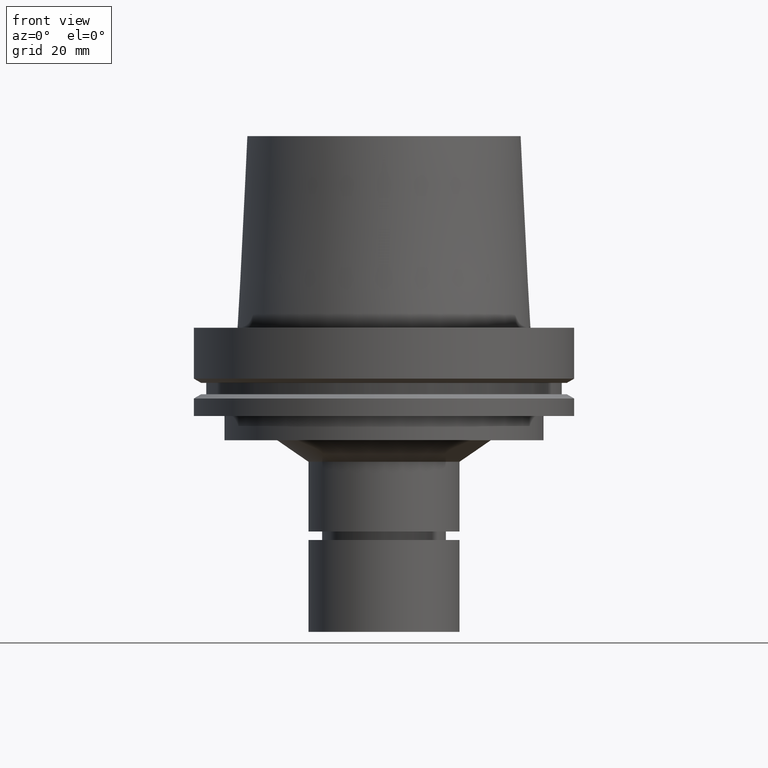
[diagram: clean part render]
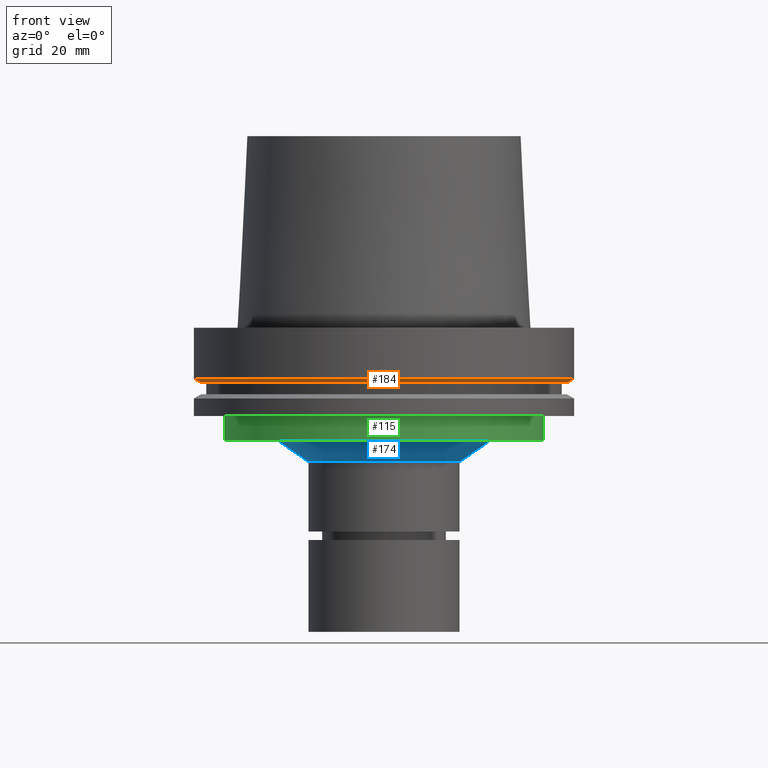
[diagram: same view with three faces highlighted in distinct colors, each labeled with its STEP entity id]
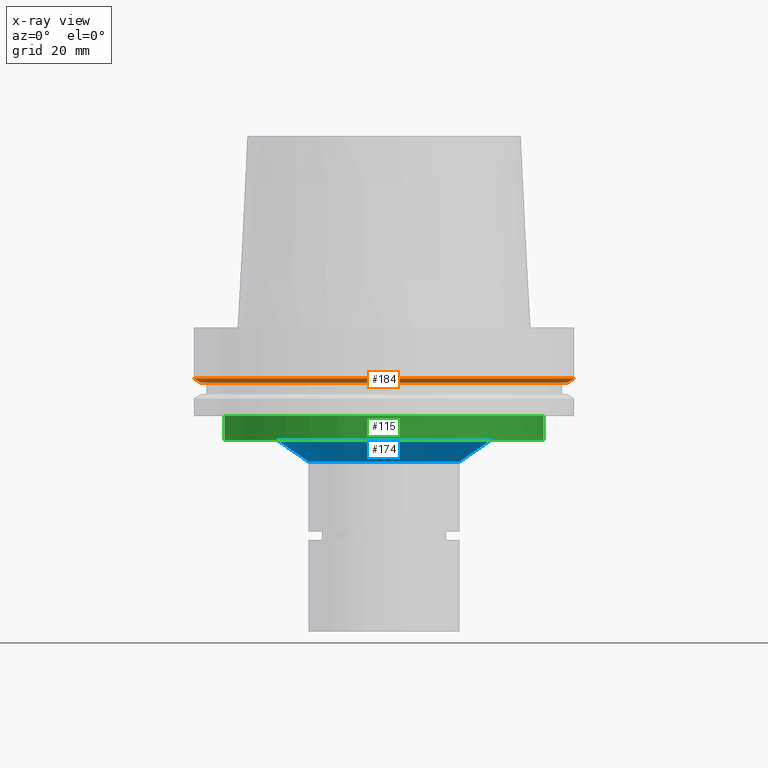
[diagram: x-ray of the same camera — body ghosted, the three highlighted faces saturated]
A machine part, front view with three faces highlighted in distinct colors.
The next image is the same camera in x-ray (body ghosted, the three faces saturated) — at least one of them is partly hidden behind the body in this view.
Their STEP definitions:

[orange] entity #184 — the highlighted conical surface has half-angle 60 deg.
#184=ADVANCED_FACE('Unnamed[1]',(#380,#381),#382,.T.);
#186=EDGE_CURVE('Unnamed[1]',#384,#384,#385,.T.);
#199=EDGE_CURVE('Unnamed[1]',#404,#404,#405,.T.);
#380=FACE_BOUND('',#617,.T.);
#381=FACE_BOUND('',#618,.T.);
#382=CONICAL_SURFACE('',#619,61.3112976320956,1.04719755119668);
#384=VERTEX_POINT('',#622);
#385=CIRCLE('',#623,62.5000000000001);
#404=VERTEX_POINT('',#648);
#405=CIRCLE('',#649,60.1225952641912);
#617=EDGE_LOOP('',(#831));
#618=EDGE_LOOP('',(#832));
#619=AXIS2_PLACEMENT_3D('',#833,#834,#835);
#622=CARTESIAN_POINT('',(1.02578894188643E-015,62.5,-16.7524047358084));
#623=AXIS2_PLACEMENT_3D('',#836,#837,#838);
#648=CARTESIAN_POINT('',(1.10983616172729E-015,60.1225952641912,-18.1250000000001));
#649=AXIS2_PLACEMENT_3D('',#857,#858,#859);
#831=ORIENTED_EDGE('',*,*,#199,.F.);
#832=ORIENTED_EDGE('',*,*,#186,.T.);
#833=CARTESIAN_POINT('',(1.06781255180686E-015,-3.21955389205117E-014,-17.4387023679042));
#834=DIRECTION('',(-6.12323399573677E-017,1.01046214935357E-015,1.0));
#835=DIRECTION('',(5.70458091125082E-032,1.0,-1.01046214935357E-015));
#836=CARTESIAN_POINT('',(1.02578894188643E-015,-3.15020611400879E-014,-16.7524047358083));
#837=DIRECTION('',(6.12323399573677E-017,-1.01046214935351E-015,-1.0));
#838=DIRECTION('',(5.70458091124975E-032,1.0,-1.01046214935351E-015));
#857=CARTESIAN_POINT('',(1.10983616172729E-015,-3.28890167009355E-014,-18.125));
#858=DIRECTION('',(6.12323399573677E-017,-1.01046214935353E-015,-1.0));
#859=DIRECTION('',(5.70458091124956E-032,1.0,-1.01046214935353E-015));

[blue] entity #174 — the highlighted conical surface has half-angle 55.144 deg.
#160=EDGE_CURVE('Unnamed[1]',#342,#342,#343,.T.);
#174=ADVANCED_FACE('Unnamed[1]',(#364,#365),#366,.T.);
#176=EDGE_CURVE('Unnamed[1]',#368,#368,#369,.T.);
#342=VERTEX_POINT('',#570);
#343=CIRCLE('',#571,35.1435726714544);
#364=FACE_BOUND('',#597,.T.);
#365=FACE_BOUND('',#598,.T.);
#366=CONICAL_SURFACE('',#599,30.071786335727,0.962446965226447);
#368=VERTEX_POINT('',#602);
#369=CIRCLE('',#603,24.9999999999996);
#570=CARTESIAN_POINT('',(2.26559657842261E-015,35.1435726714544,-37.0000000000001));
#571=AXIS2_PLACEMENT_3D('',#788,#789,#790);
#597=EDGE_LOOP('',(#813));
#598=EDGE_LOOP('',(#814));
#599=AXIS2_PLACEMENT_3D('',#815,#816,#817);
#602=CARTESIAN_POINT('',(2.6981810574591E-015,24.9999999999995,-44.0646406676224));
#603=AXIS2_PLACEMENT_3D('',#818,#819,#820);
#788=CARTESIAN_POINT('',(2.26559657842261E-015,-5.1961489769984E-014,-37.0000000000001));
#789=DIRECTION('',(6.12323399573677E-017,-1.01046214935359E-015,-1.0));
#790=DIRECTION('',(5.70458091125022E-032,1.0,-1.01046214935359E-015));
#813=ORIENTED_EDGE('',*,*,#176,.F.);
#814=ORIENTED_EDGE('',*,*,#160,.T.);
#815=CARTESIAN_POINT('',(2.48188881794086E-015,-5.55307657666921E-014,-40.5323203338112));
#816=DIRECTION('',(-6.12323399573677E-017,1.01046214935361E-015,1.0));
#817=DIRECTION('',(5.70458091124995E-032,1.0,-1.01046214935361E-015));
#818=CARTESIAN_POINT('',(2.6981810574591E-015,-5.91000417634002E-014,-44.0646406676224));
#819=DIRECTION('',(6.12323399573677E-017,-1.0104621493535E-015,-1.0));
#820=DIRECTION('',(5.70458091124956E-032,1.0,-1.0104621493535E-015));

[green] entity #115 — the highlighted cylindrical surface (bore or boss wall) has radius 52.5 mm, axis along (0, -0, -1).
#115=ADVANCED_FACE('Unnamed[1]',(#271,#272),#273,.T.);
#123=EDGE_CURVE('Unnamed[1]',#285,#285,#286,.T.);
#140=EDGE_CURVE('Unnamed[1]',#311,#311,#312,.T.);
#271=FACE_BOUND('',#482,.T.);
#272=FACE_BOUND('',#483,.T.);
#273=CYLINDRICAL_SURFACE('',#484,52.5);
#285=VERTEX_POINT('',#499);
#286=CIRCLE('',#500,52.4999999999999);
#311=VERTEX_POINT('',#531);
#312=CIRCLE('',#532,52.5000000000001);
#482=EDGE_LOOP('',(#705));
#483=EDGE_LOOP('',(#706));
#484=AXIS2_PLACEMENT_3D('',#707,#708,#709);
#499=CARTESIAN_POINT('',(2.26559657842261E-015,52.4999999999999,-37.0000000000001));
#500=AXIS2_PLACEMENT_3D('',#722,#723,#724);
#531=CARTESIAN_POINT('',(1.77573785876367E-015,52.5,-29.0000000000001));
#532=AXIS2_PLACEMENT_3D('',#753,#754,#755);
#705=ORIENTED_EDGE('',*,*,#123,.F.);
#706=ORIENTED_EDGE('',*,*,#140,.T.);
#707=CARTESIAN_POINT('',(2.02066721859314E-015,-4.79196411725698E-014,-33.0000000000001));
#708=DIRECTION('',(6.12323399573677E-017,-1.01046214935361E-015,-1.0));
#709=DIRECTION('',(5.70458091124995E-032,1.0,-1.01046214935361E-015));
#722=CARTESIAN_POINT('',(2.26559657842261E-015,-5.1961489769984E-014,-37.0000000000001));
#723=DIRECTION('',(6.12323399573677E-017,-1.01046214935361E-015,-1.0));
#724=DIRECTION('',(5.70458091125064E-032,1.0,-1.01046214935361E-015));
#753=CARTESIAN_POINT('',(1.77573785876367E-015,-4.38777925751555E-014,-29.0000000000001));
#754=DIRECTION('',(6.12323399573677E-017,-1.01046214935361E-015,-1.0));
#755=DIRECTION('',(5.70458091125062E-032,1.0,-1.01046214935361E-015));